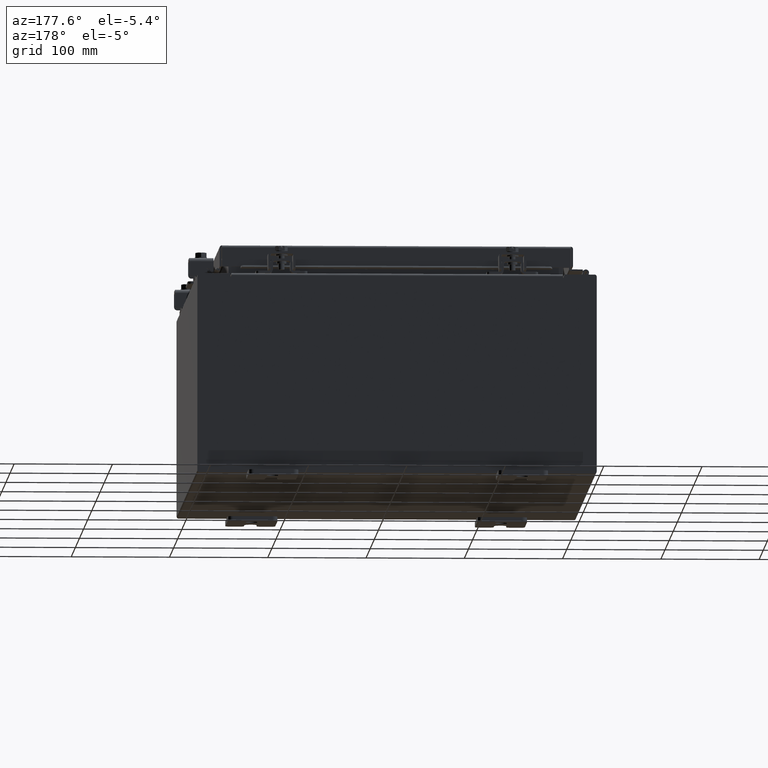
[diagram: clean part render]
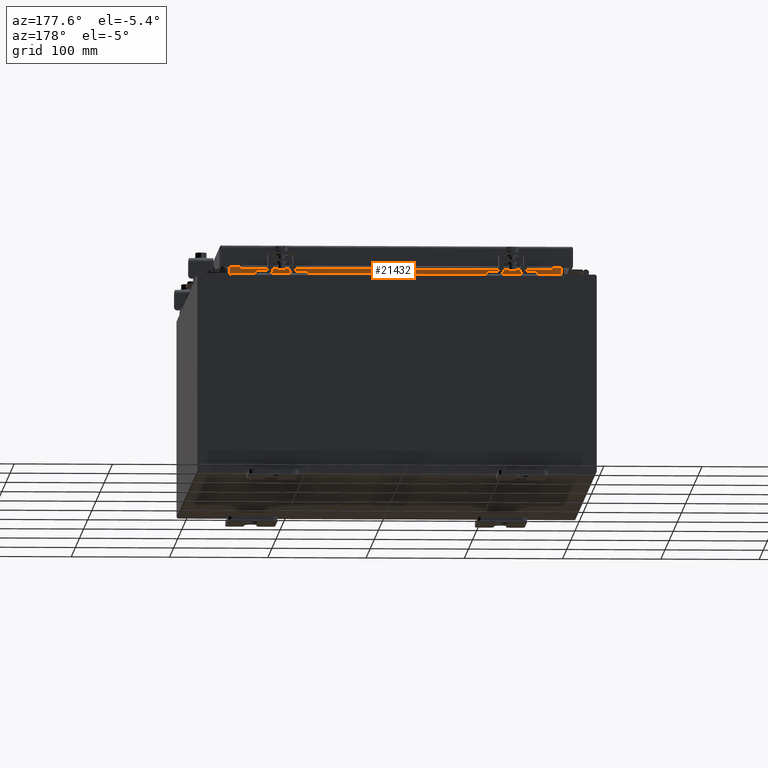
[diagram: same view with one face highlighted and labeled with its STEP entity id]
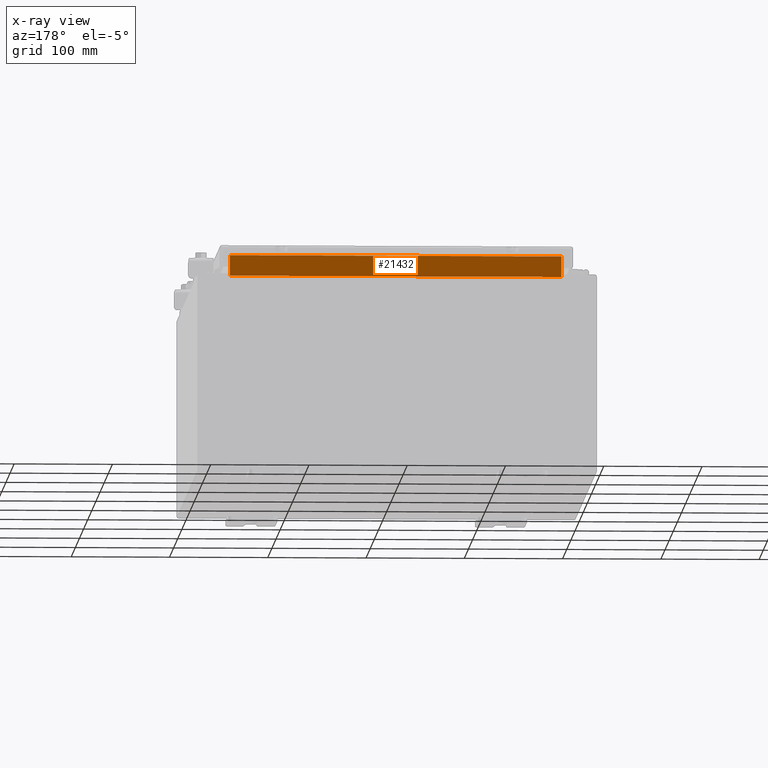
[diagram: x-ray of the same camera — body ghosted, the highlighted face saturated]
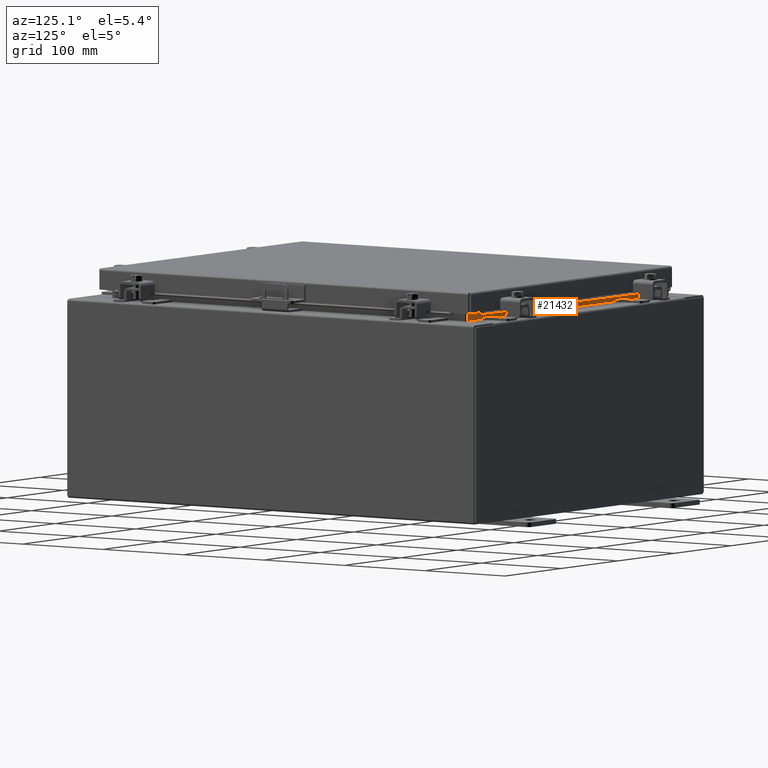
[diagram: same view with one face highlighted and labeled with its STEP entity id]
A machine part, auxiliary view. The second image highlights one B-rep face of the part: STEP entity #21432.
The next image is the same camera in x-ray: the body ghosted, the highlighted face saturated — about 0% of this face is hidden behind the body in this view.
A second angle (auxiliary view) of the same face is appended — the face is thin or edge-on in the first view.
In plain terms, the highlighted planar face has unit normal (0, 1, 0).
Its self-contained STEP definition (entity closure, byte-faithful):
#434 = CARTESIAN_POINT ( 'NONE',  ( -6.637200000000000000, -1.300299999999999800, 4.013000000000003500 ) ) ;
#1813 = DIRECTION ( 'NONE',  ( 0.0000000000000000000, -0.0000000000000000000, 1.000000000000000000 ) ) ;
#1990 = CARTESIAN_POINT ( 'NONE',  ( -6.637199999999999100, -1.300299999999999800, 4.013000000000003500 ) ) ;
#2532 = CARTESIAN_POINT ( 'NONE',  ( 6.637200000000000000, -1.300299999999999800, 4.837600000000003700 ) ) ;
#2540 = ORIENTED_EDGE ( 'NONE', *, *, #9792, .F. ) ;
#4909 = CARTESIAN_POINT ( 'NONE',  ( 6.637200000000000000, -1.300299999999999800, 4.837600000000003700 ) ) ;
#8554 = PLANE ( 'NONE',  #12576 ) ;
#9792 = EDGE_CURVE ( 'NONE', #21497, #9995, #26848, .T. ) ;
#9995 = VERTEX_POINT ( 'NONE', #16953 ) ;
#12576 = AXIS2_PLACEMENT_3D ( 'NONE', #29051, #15377, #1813 ) ;
#13252 = DIRECTION ( 'NONE',  ( -0.0000000000000000000, -0.0000000000000000000, 1.000000000000000000 ) ) ;
#13582 = LINE ( 'NONE', #4909, #19634 ) ;
#13863 = ORIENTED_EDGE ( 'NONE', *, *, #22209, .F. ) ;
#13984 = DIRECTION ( 'NONE',  ( 1.000000000000000000, 0.0000000000000000000, -4.115964553824298400E-017 ) ) ;
#15377 = DIRECTION ( 'NONE',  ( 0.0000000000000000000, 1.000000000000000000, 0.0000000000000000000 ) ) ;
#15682 = LINE ( 'NONE', #19915, #21794 ) ;
#16737 = EDGE_LOOP ( 'NONE', ( #17022, #26167, #13863, #2540 ) ) ;
#16953 = CARTESIAN_POINT ( 'NONE',  ( 6.637200000000000900, -1.300299999999999800, 4.013000000000003500 ) ) ;
#17022 = ORIENTED_EDGE ( 'NONE', *, *, #24726, .F. ) ;
#19026 = CARTESIAN_POINT ( 'NONE',  ( -6.637200000000000000, -1.300299999999999800, 4.837600000000003700 ) ) ;
#19634 = VECTOR ( 'NONE', #20825, 39.37007874015748100 ) ;
#19915 = CARTESIAN_POINT ( 'NONE',  ( -6.637200000000000000, -1.300299999999999800, 4.000000000000003600 ) ) ;
#20698 = VERTEX_POINT ( 'NONE', #19026 ) ;
#20818 = VECTOR ( 'NONE', #13984, 39.37007874015748100 ) ;
#20825 = DIRECTION ( 'NONE',  ( -1.000000000000000000, -0.0000000000000000000, -0.0000000000000000000 ) ) ;
#21132 = EDGE_CURVE ( 'NONE', #22419, #20698, #13582, .T. ) ;
#21365 = VECTOR ( 'NONE', #13252, 39.37007874015748100 ) ;
#21432 = ADVANCED_FACE ( 'NONE', ( #21764 ), #8554, .T. ) ;
#21497 = VERTEX_POINT ( 'NONE', #1990 ) ;
#21764 = FACE_OUTER_BOUND ( 'NONE', #16737, .T. ) ;
#21794 = VECTOR ( 'NONE', #22210, 39.37007874015748100 ) ;
#22209 = EDGE_CURVE ( 'NONE', #9995, #22419, #27438, .T. ) ;
#22210 = DIRECTION ( 'NONE',  ( -0.0000000000000000000, -0.0000000000000000000, -1.000000000000000000 ) ) ;
#22419 = VERTEX_POINT ( 'NONE', #2532 ) ;
#24726 = EDGE_CURVE ( 'NONE', #20698, #21497, #15682, .T. ) ;
#26167 = ORIENTED_EDGE ( 'NONE', *, *, #21132, .F. ) ;
#26848 = LINE ( 'NONE', #434, #20818 ) ;
#26885 = CARTESIAN_POINT ( 'NONE',  ( 6.637200000000000000, -1.300299999999999800, 4.925300000000004500 ) ) ;
#27438 = LINE ( 'NONE', #26885, #21365 ) ;
#29051 = CARTESIAN_POINT ( 'NONE',  ( 0.0000000000000000000, -1.300299999999999800, 0.0000000000000000000 ) ) ;